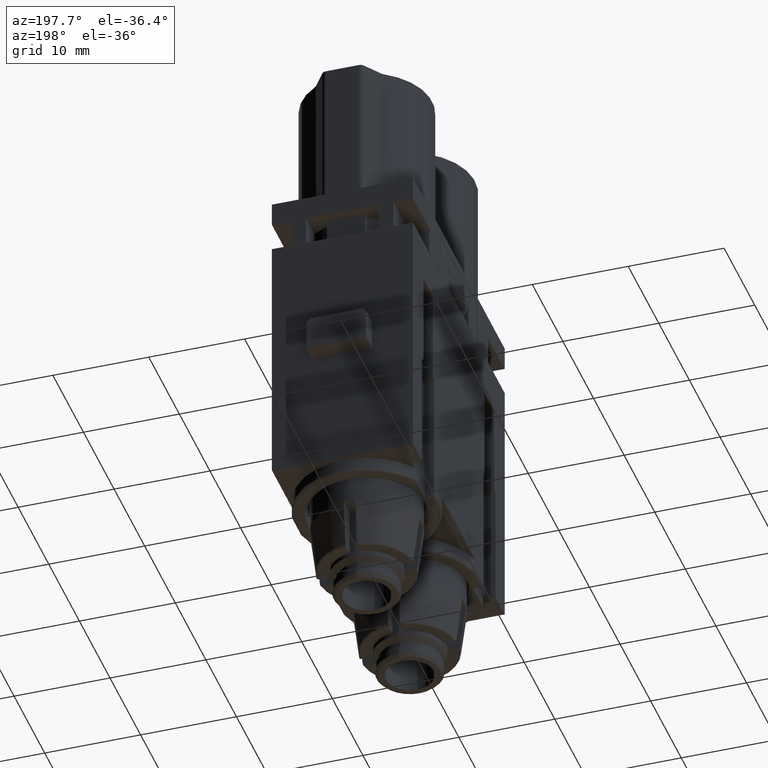
[diagram: clean part render]
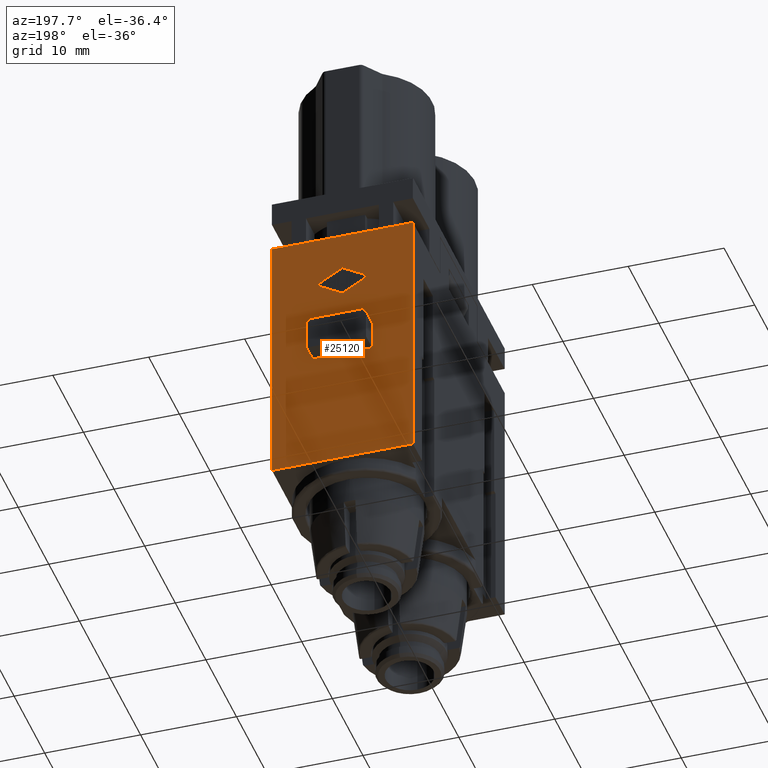
[diagram: same view with one face highlighted and labeled with its STEP entity id]
A machine part, auxiliary view. The second image highlights one B-rep face of the part: STEP entity #25120.
In plain terms, the highlighted planar face has unit normal (0, 1, 0).
Its self-contained STEP definition (entity closure, byte-faithful):
#2510=CARTESIAN_POINT('',(73.9968229999995,81.9545149999989,
-20.2999999999989));
#2520=VERTEX_POINT('',#2510);
#2550=CARTESIAN_POINT('',(73.9968229999995,81.9545149999994,
-46.0999999999995));
#2560=DIRECTION('',(-2.22044604925028E-16,1.74489636972507E-14,-1.));
#2570=VECTOR('',#2560,1.);
#2580=LINE('',#2550,#2570);
#2590=CARTESIAN_POINT('',(73.9968229999997,81.9545149999994,
-47.5999999999994));
#2600=VERTEX_POINT('',#2590);
#2610=EDGE_CURVE('',#2520,#2600,#2580,.T.);
#13460=CARTESIAN_POINT('',(59.2968229999996,81.9545149999994,
-47.5999999999995));
#13470=VERTEX_POINT('',#13460);
#13500=CARTESIAN_POINT('',(59.2968229999995,81.9545149999994,
-46.0999999999995));
#13510=DIRECTION('',(-5.87502177453421E-15,-1.74489636972507E-14,1.));
#13520=VECTOR('',#13510,1.);
#13530=LINE('',#13500,#13520);
#13540=CARTESIAN_POINT('',(59.2968229999996,81.9545149999989,
-20.2999999999989));
#13550=VERTEX_POINT('',#13540);
#13560=EDGE_CURVE('',#13470,#13550,#13530,.T.);
#24050=CARTESIAN_POINT('',(66.6468230000001,81.9545149999992,
-37.6999999999991));
#24060=DIRECTION('',(9.73145882576852E-16,1.,1.74489636972507E-14));
#24070=DIRECTION('',(2.22044604925025E-16,-1.74489636972507E-14,1.));
#24080=AXIS2_PLACEMENT_3D('',#24050,#24060,#24070);
#24090=PLANE('',#24080);
#24100=ORIENTED_EDGE('',*,*,#13560,.T.);
#24110=CARTESIAN_POINT('',(59.2968229999995,81.9545149999994,
-47.5999999999995));
#24120=DIRECTION('',(1.,1.28682588285448E-31,5.87502177453421E-15));
#24130=VECTOR('',#24120,1.);
#24140=LINE('',#24110,#24130);
#24150=EDGE_CURVE('',#13470,#2600,#24140,.T.);
#24160=ORIENTED_EDGE('',*,*,#24150,.F.);
#24170=ORIENTED_EDGE('',*,*,#2610,.T.);
#24180=CARTESIAN_POINT('',(72.446823,81.9545149999989,-20.2999999999989)
);
#24190=DIRECTION('',(-1.,9.73145882576852E-16,9.86076131526265E-32));
#24200=VECTOR('',#24190,1.);
#24210=LINE('',#24180,#24200);
#24220=EDGE_CURVE('',#2520,#13550,#24210,.T.);
#24230=ORIENTED_EDGE('',*,*,#24220,.F.);
#24240=EDGE_LOOP('',(#24230,#24170,#24160,#24100));
#24250=FACE_OUTER_BOUND('',#24240,.T.);
#24260=CARTESIAN_POINT('',(72.446823,81.954514999999,-24.0172608461906))
;
#24270=DIRECTION('',(-0.866282694561766,9.57567358739198E-15,
-0.499554094270887));
#24280=VECTOR('',#24270,1.);
#24290=LINE('',#24260,#24280);
#24300=CARTESIAN_POINT('',(69.3553538366531,81.954514999999,
-25.7999999999993));
#24310=VERTEX_POINT('',#24300);
#24320=CARTESIAN_POINT('',(66.6468230000001,81.954514999999,
-27.3619123842625));
#24330=VERTEX_POINT('',#24320);
#24340=EDGE_CURVE('',#24310,#24330,#24290,.T.);
#24350=ORIENTED_EDGE('',*,*,#24340,.F.);
#24360=CARTESIAN_POINT('',(72.446823,81.9545149999991,-30.7065639223344)
);
#24370=DIRECTION('',(-0.866282694561766,-7.82707232360736E-15,
0.499554094270886));
#24380=VECTOR('',#24370,1.);
#24390=LINE('',#24360,#24380);
#24400=CARTESIAN_POINT('',(63.9382921633471,81.954514999999,
-25.7999999999993));
#24410=VERTEX_POINT('',#24400);
#24420=EDGE_CURVE('',#24330,#24410,#24390,.T.);
#24430=ORIENTED_EDGE('',*,*,#24420,.F.);
#24440=CARTESIAN_POINT('',(72.446823,81.9545149999989,-20.8934360776641)
);
#24450=DIRECTION('',(0.866282694561766,-9.57567358739198E-15,
0.499554094270887));
#24460=VECTOR('',#24450,1.);
#24470=LINE('',#24440,#24460);
#24480=CARTESIAN_POINT('',(66.6468230000001,81.954514999999,
-24.238087615736));
#24490=VERTEX_POINT('',#24480);
#24500=EDGE_CURVE('',#24410,#24490,#24470,.T.);
#24510=ORIENTED_EDGE('',*,*,#24500,.F.);
#24520=CARTESIAN_POINT('',(72.446823,81.954514999999,-27.582739153808));
#24530=DIRECTION('',(0.866282694561766,7.82707232360736E-15,
-0.499554094270886));
#24540=VECTOR('',#24530,1.);
#24550=LINE('',#24520,#24540);
#24560=EDGE_CURVE('',#24490,#24310,#24550,.T.);
#24570=ORIENTED_EDGE('',*,*,#24560,.F.);
#24580=EDGE_LOOP('',(#24570,#24510,#24430,#24350));
#24590=FACE_BOUND('',#24580,.T.);
#24600=CARTESIAN_POINT('',(63.5468230000001,81.954515,-45.6999999999993)
);
#24610=DIRECTION('',(-2.22044604925034E-16,5.0711884513188E-15,-1.));
#24620=VECTOR('',#24610,1.);
#24630=LINE('',#24600,#24620);
#24640=CARTESIAN_POINT('',(63.5468230000001,81.9545149999991,
-31.7999999999993));
#24650=VERTEX_POINT('',#24640);
#24660=CARTESIAN_POINT('',(63.5468230000001,81.9545149999992,
-34.7999999999993));
#24670=VERTEX_POINT('',#24660);
#24680=EDGE_CURVE('',#24650,#24670,#24630,.T.);
#24690=ORIENTED_EDGE('',*,*,#24680,.T.);
#24700=CARTESIAN_POINT('',(64.0468230000001,81.9545149999999,
-31.7999999999993));
#24710=DIRECTION('',(1.09561056249158E-15,1.,2.52911787213316E-15));
#24720=DIRECTION('',(-2.22044604925036E-16,2.52911787213316E-15,-1.));
#24730=AXIS2_PLACEMENT_3D('',#24700,#24710,#24720);
#24740=CIRCLE('',#24730,0.5);
#24750=CARTESIAN_POINT('',(64.0468230000001,81.9545149999991,
-31.2999999999993));
#24760=VERTEX_POINT('',#24750);
#24770=EDGE_CURVE('',#24650,#24760,#24740,.T.);
#24780=ORIENTED_EDGE('',*,*,#24770,.F.);
#24790=CARTESIAN_POINT('',(72.4468229999999,81.9545149999999,
-31.2999999999993));
#24800=DIRECTION('',(1.,-6.05751842832641E-16,-2.22044604925037E-16));
#24810=VECTOR('',#24800,1.);
#24820=LINE('',#24790,#24810);
#24830=CARTESIAN_POINT('',(69.2468230000001,81.9545149999991,
-31.2999999999993));
#24840=VERTEX_POINT('',#24830);
#24850=EDGE_CURVE('',#24760,#24840,#24820,.T.);
#24860=ORIENTED_EDGE('',*,*,#24850,.F.);
#24870=CARTESIAN_POINT('',(69.2468230000001,81.9545149999999,
-31.7999999999993));
#24880=DIRECTION('',(1.09561056249158E-15,1.,2.52911787213316E-15));
#24890=DIRECTION('',(-2.22044604925036E-16,2.52911787213316E-15,-1.));
#24900=AXIS2_PLACEMENT_3D('',#24870,#24880,#24890);
#24910=CIRCLE('',#24900,0.5);
#24920=CARTESIAN_POINT('',(69.7468230000001,81.9545149999991,
-31.7999999999993));
#24930=VERTEX_POINT('',#24920);
#24940=EDGE_CURVE('',#24840,#24930,#24910,.T.);
#24950=ORIENTED_EDGE('',*,*,#24940,.F.);
#24960=CARTESIAN_POINT('',(69.7468230000001,81.954515,-45.6999999999993)
);
#24970=DIRECTION('',(2.22044604925034E-16,-5.0711884513188E-15,1.));
#24980=VECTOR('',#24970,1.);
#24990=LINE('',#24960,#24980);
#25000=CARTESIAN_POINT('',(69.7468230000001,81.9545149999992,
-34.7999999999993));
#25010=VERTEX_POINT('',#25000);
#25020=EDGE_CURVE('',#25010,#24930,#24990,.T.);
#25030=ORIENTED_EDGE('',*,*,#25020,.T.);
#25040=CARTESIAN_POINT('',(69.7468230000001,81.9545149999992,
-34.7999999999993));
#25050=DIRECTION('',(-1.,9.73145882576848E-16,2.22044604925042E-16));
#25060=VECTOR('',#25050,1.);
#25070=LINE('',#25040,#25060);
#25080=EDGE_CURVE('',#25010,#24670,#25070,.T.);
#25090=ORIENTED_EDGE('',*,*,#25080,.F.);
#25100=EDGE_LOOP('',(#25090,#25030,#24950,#24860,#24780,#24690));
#25110=FACE_BOUND('',#25100,.T.);
#25120=ADVANCED_FACE('',(#24250,#24590,#25110),#24090,.T.);